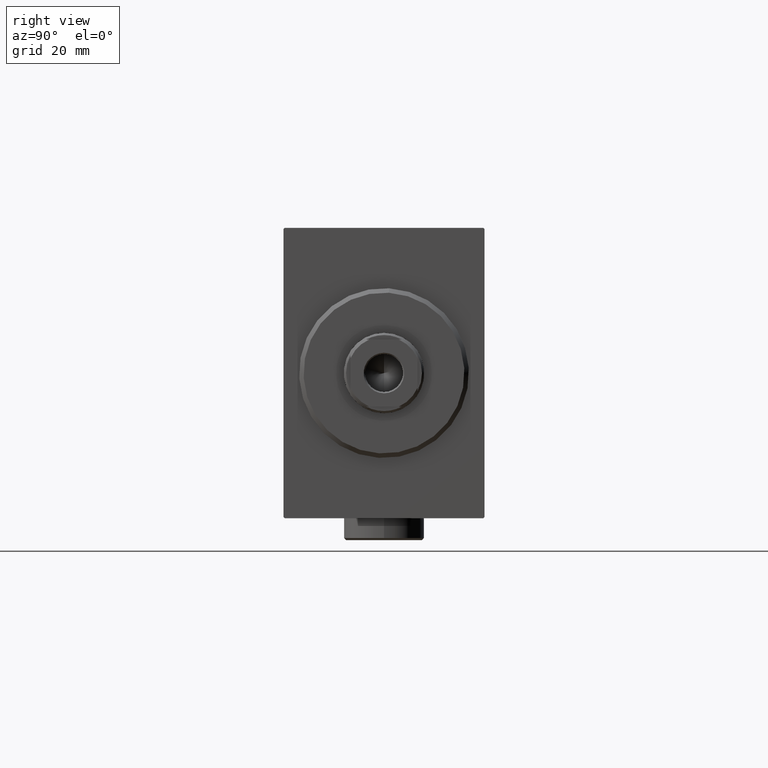
[diagram: clean part render]
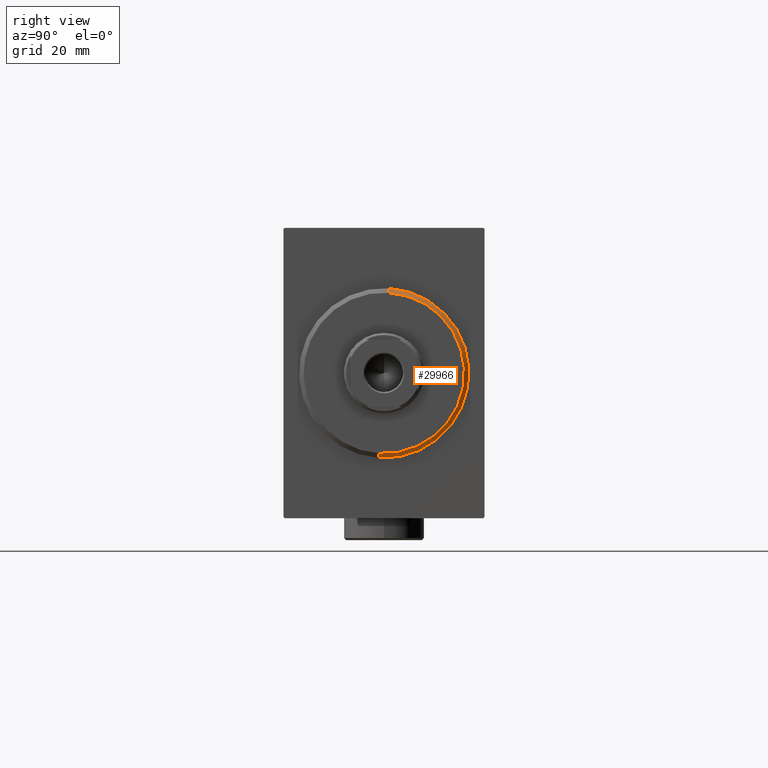
[diagram: same view with one face highlighted and labeled with its STEP entity id]
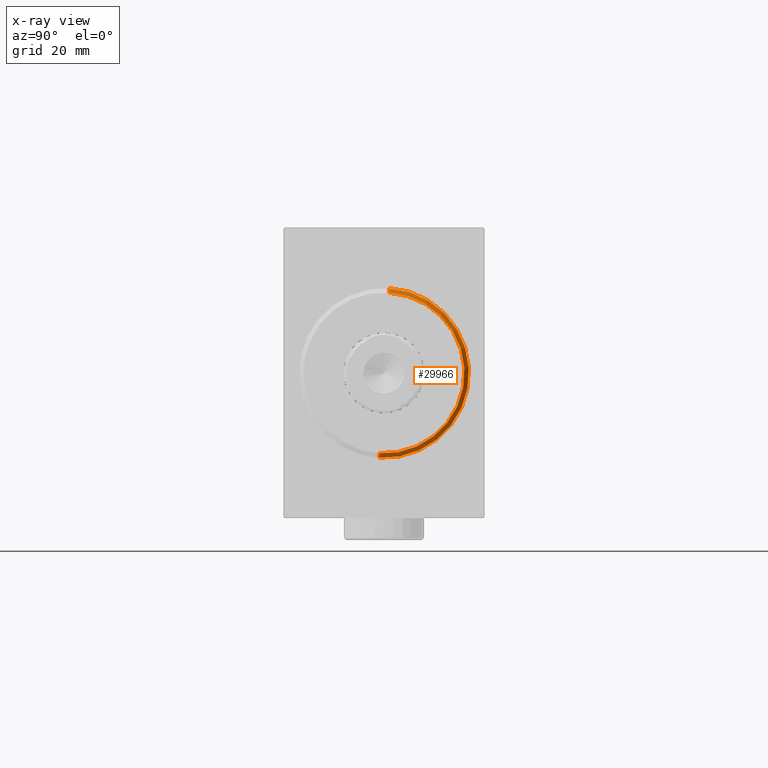
[diagram: x-ray of the same camera — body ghosted, the highlighted face saturated]
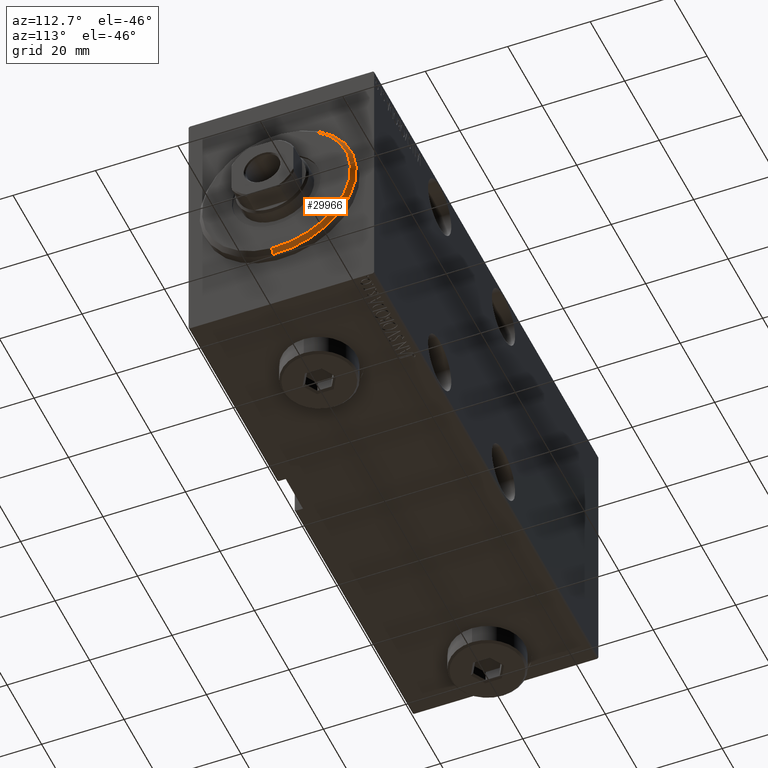
[diagram: same view with one face highlighted and labeled with its STEP entity id]
A machine part, right view. The second image highlights one B-rep face of the part: STEP entity #29966.
The next image is the same camera in x-ray: the body ghosted, the highlighted face saturated — about 0% of this face is hidden behind the body in this view.
A second angle (auxiliary view) of the same face is appended — the face is thin or edge-on in the first view.
In plain terms, the highlighted conical surface has half-angle 45 deg.
Its self-contained STEP definition (entity closure, byte-faithful):
#842 = EDGE_CURVE ( 'NONE', #10197, #4160, #37323, .T. ) ;
#1240 = CARTESIAN_POINT ( 'NONE',  ( 3.000000000000000000, 2.265596578422603002E-15, -17.99999999999999645 ) ) ;
#2870 = CARTESIAN_POINT ( 'NONE',  ( 3.000000000000000000, 0.000000000000000000, 17.99999999999999645 ) ) ;
#3148 = CIRCLE ( 'NONE', #16812, 19.00000000000000000 ) ;
#3906 = ORIENTED_EDGE ( 'NONE', *, *, #43557, .F. ) ;
#4160 = VERTEX_POINT ( 'NONE', #4492 ) ;
#4492 = CARTESIAN_POINT ( 'NONE',  ( 3.000000000000000000, 0.000000000000000000, 17.99999999999999645 ) ) ;
#4607 = CARTESIAN_POINT ( 'NONE',  ( 1.999999999999992228, 0.000000000000000000, 0.000000000000000000 ) ) ;
#4824 = DIRECTION ( 'NONE',  ( -1.000000000000000000, 0.000000000000000000, 0.000000000000000000 ) ) ;
#6469 = DIRECTION ( 'NONE',  ( -0.7071067811865487940, 0.000000000000000000, 0.7071067811865463515 ) ) ;
#8666 = VERTEX_POINT ( 'NONE', #24787 ) ;
#10197 = VERTEX_POINT ( 'NONE', #1240 ) ;
#12009 = EDGE_CURVE ( 'NONE', #10197, #8666, #30701, .T. ) ;
#14984 = CARTESIAN_POINT ( 'NONE',  ( 3.000000000000000000, 0.000000000000000000, 0.000000000000000000 ) ) ;
#16809 = VECTOR ( 'NONE', #34520, 1000.000000000000000 ) ;
#16812 = AXIS2_PLACEMENT_3D ( 'NONE', #4607, #4824, #19009 ) ;
#19009 = DIRECTION ( 'NONE',  ( 0.000000000000000000, 0.000000000000000000, -1.000000000000000000 ) ) ;
#20086 = VERTEX_POINT ( 'NONE', #31605 ) ;
#20119 = CONICAL_SURFACE ( 'NONE', #40274, 17.99999999999999645, 0.7853981633974466137 ) ;
#21742 = DIRECTION ( 'NONE',  ( 0.000000000000000000, 0.000000000000000000, 1.000000000000000000 ) ) ;
#22738 = DIRECTION ( 'NONE',  ( 0.000000000000000000, 0.000000000000000000, -1.000000000000000000 ) ) ;
#24787 = CARTESIAN_POINT ( 'NONE',  ( 1.999999999999992228, 2.326828918379970970E-15, -19.00000000000000000 ) ) ;
#26301 = LINE ( 'NONE', #2870, #32657 ) ;
#26770 = ORIENTED_EDGE ( 'NONE', *, *, #40927, .F. ) ;
#29409 = AXIS2_PLACEMENT_3D ( 'NONE', #36490, #43675, #22738 ) ;
#29966 = ADVANCED_FACE ( 'NONE', ( #38869 ), #20119, .T. ) ;
#30300 = ORIENTED_EDGE ( 'NONE', *, *, #842, .F. ) ;
#30701 = LINE ( 'NONE', #34965, #16809 ) ;
#31605 = CARTESIAN_POINT ( 'NONE',  ( 1.999999999999992228, 0.000000000000000000, 19.00000000000000000 ) ) ;
#32657 = VECTOR ( 'NONE', #6469, 1000.000000000000000 ) ;
#34520 = DIRECTION ( 'NONE',  ( -0.7071067811865487940, 8.659560562354918067E-17, -0.7071067811865463515 ) ) ;
#34965 = CARTESIAN_POINT ( 'NONE',  ( 3.000000000000000000, 2.204364238465235033E-15, -17.99999999999999645 ) ) ;
#36490 = CARTESIAN_POINT ( 'NONE',  ( 3.000000000000000000, 0.000000000000000000, 0.000000000000000000 ) ) ;
#37323 = CIRCLE ( 'NONE', #29409, 17.99999999999999645 ) ;
#37723 = EDGE_LOOP ( 'NONE', ( #30300, #38026, #3906, #26770 ) ) ;
#38026 = ORIENTED_EDGE ( 'NONE', *, *, #12009, .T. ) ;
#38869 = FACE_OUTER_BOUND ( 'NONE', #37723, .T. ) ;
#40274 = AXIS2_PLACEMENT_3D ( 'NONE', #14984, #41793, #21742 ) ;
#40927 = EDGE_CURVE ( 'NONE', #4160, #20086, #26301, .T. ) ;
#41793 = DIRECTION ( 'NONE',  ( -1.000000000000000000, 0.000000000000000000, 0.000000000000000000 ) ) ;
#43557 = EDGE_CURVE ( 'NONE', #20086, #8666, #3148, .T. ) ;
#43675 = DIRECTION ( 'NONE',  ( 1.000000000000000000, -0.000000000000000000, 0.000000000000000000 ) ) ;